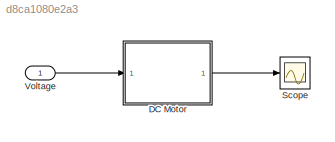
MODEL slx_d8ca1080e2a3
KIND model
CONFIG AbsTol = auto
CONFIG EnableMultiTasking = off
CONFIG FixedStep = auto
CONFIG MaxStep = auto
CONFIG MinStep = auto
CONFIG RelTol = 1e-3
CONFIG SampleTimeConstraint = Unconstrained
CONFIG SolverName = VariableStepAuto
CONFIG StartTime = 0.0
CONFIG StopTime = 10.0
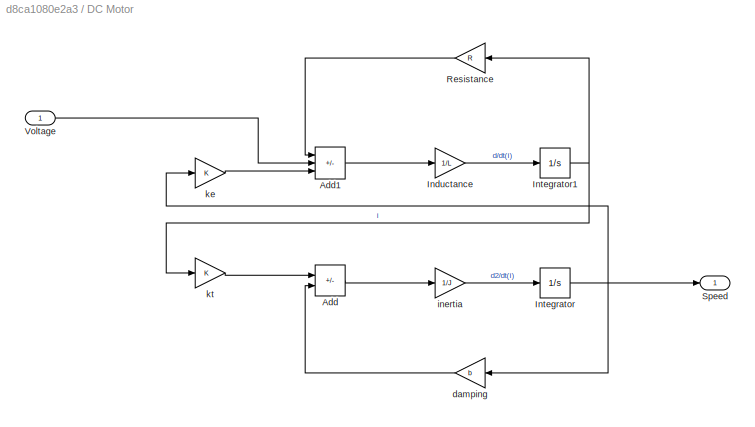
BLOCK [SubSystem] DC Motor
  Ports = [1, 1]
  RequestExecContextInheritance = off
BLOCK [Sum] DC Motor/Add
  IconShape = rectangular
  Inputs = +-
  Ports = [2, 1]
BLOCK [Sum] DC Motor/Add1
  IconShape = rectangular
  Inputs = -+-
  Ports = [3, 1]
BLOCK [Gain] DC Motor/Inductance
  Gain = 1/L
BLOCK [Integrator] DC Motor/Integrator
  Ports = [1, 1]
BLOCK [Integrator] DC Motor/Integrator1
  Ports = [1, 1]
BLOCK [Gain] DC Motor/Resistance
  Gain = R
BLOCK [Outport] DC Motor/Speed
BLOCK [Inport] DC Motor/Voltage
BLOCK [Gain] DC Motor/damping
  Gain = b
BLOCK [Gain] DC Motor/inertia
  Gain = 1/J
BLOCK [Gain] DC Motor/ke
  Gain = K
BLOCK [Gain] DC Motor/kt
  Gain = K
BLOCK [Scope] Scope
  Floating = off
  NumInputPorts = 1
  Ports = [1]
  ScopeSpecificationString = Simulink.scopes.TimeScopeBlockCfg('CurrentConfiguration', extmgr.ConfigurationSet(extmgr.Configuration('Core','General UI',true),extmgr.Configuration('Core','Source UI',true),extmgr.Configuration('Sources','WiredSimulink',true),extmgr.Configuration('Visuals','Time Domain',true,'SerializedDisplays',{struct('MinYLimReal','-1.00000','MaxYLimReal','1.00000','YLabelReal','','MinYLimMag','0.00000','MaxY...<+1328ch>
BLOCK [Inport] Voltage
LINE DC Motor/Add1:1 -> DC Motor/Inductance:1
LINE DC Motor/Add:1 -> DC Motor/inertia:1
LINE DC Motor/Inductance:1 -> DC Motor/Integrator1:1
NET DC Motor/Integrator1:1 -> DC Motor/Resistance:1, DC Motor/kt:1
NET DC Motor/Integrator:1 -> DC Motor/Speed:1, DC Motor/damping:1, DC Motor/ke:1
LINE DC Motor/Resistance:1 -> DC Motor/Add1:1
LINE DC Motor/Voltage:1 -> DC Motor/Add1:2
LINE DC Motor/damping:1 -> DC Motor/Add:2
LINE DC Motor/inertia:1 -> DC Motor/Integrator:1
LINE DC Motor/ke:1 -> DC Motor/Add1:3
LINE DC Motor/kt:1 -> DC Motor/Add:1
LINE DC Motor:1 -> Scope:1
LINE Voltage:1 -> DC Motor:1
note: NET lines group one-source signal fan-out (src -> all destinations, sorted); 1:1 wires keep LINE
